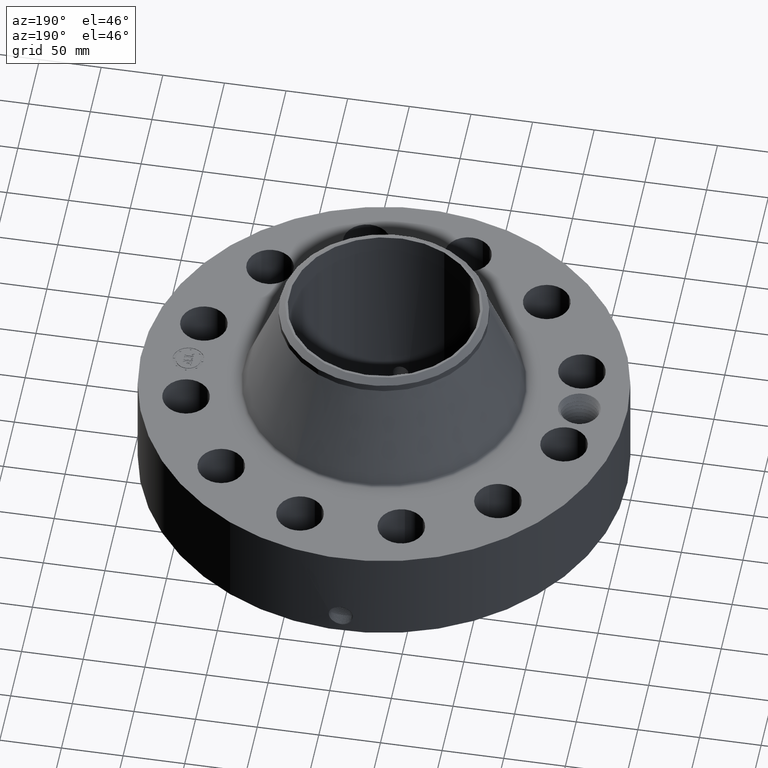
[diagram: clean part render]
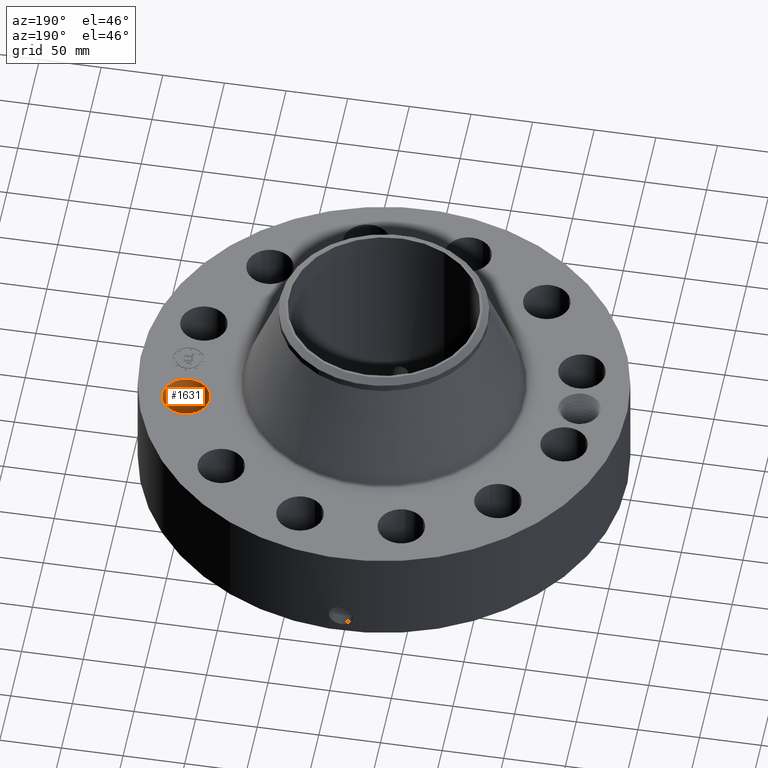
[diagram: same view with one face highlighted and labeled with its STEP entity id]
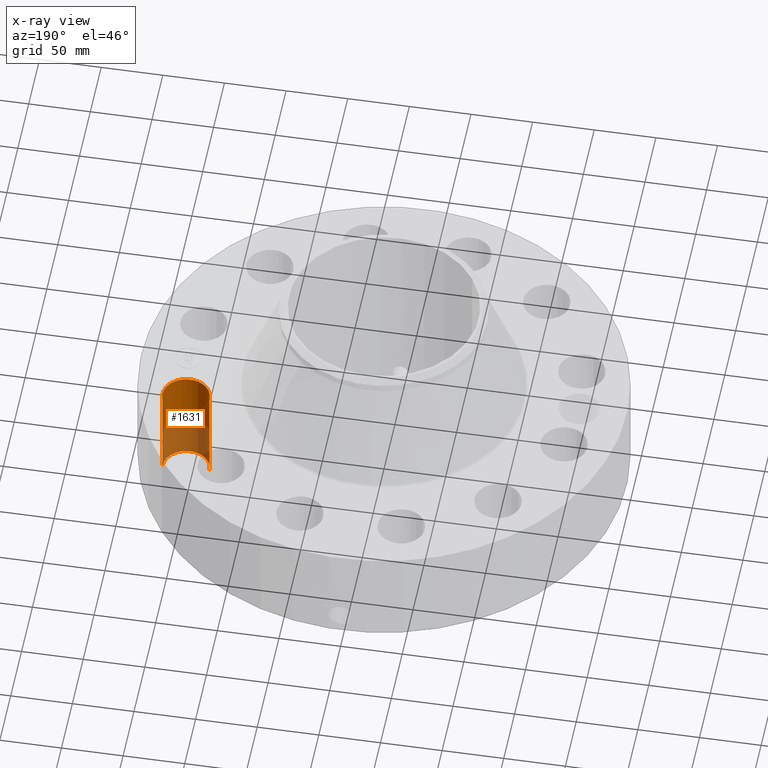
[diagram: x-ray of the same camera — body ghosted, the highlighted face saturated]
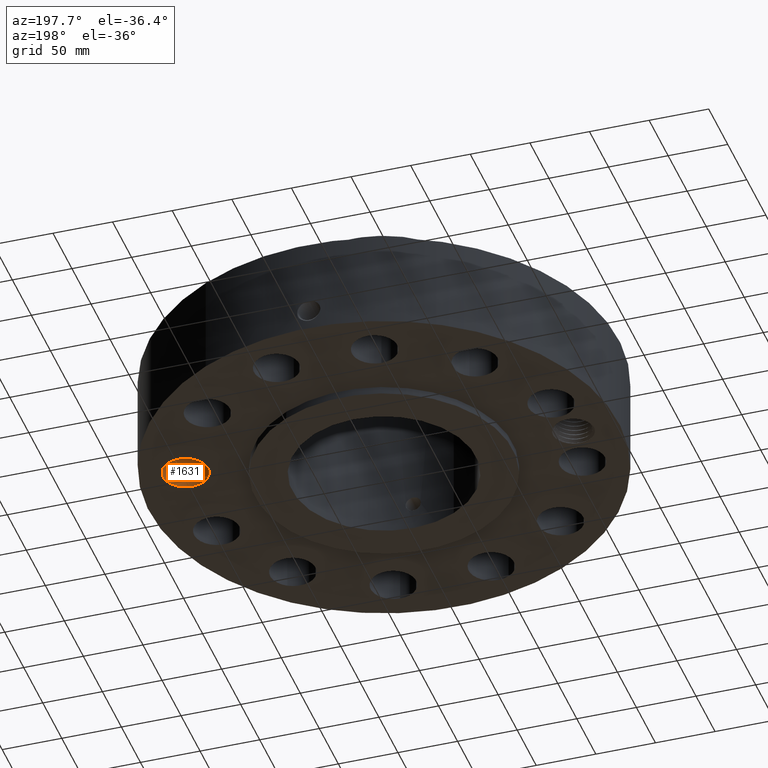
[diagram: same view with one face highlighted and labeled with its STEP entity id]
A machine part, auxiliary view. The second image highlights one B-rep face of the part: STEP entity #1631.
The next image is the same camera in x-ray: the body ghosted, the highlighted face saturated — about 46% of this face is hidden behind the body in this view.
A second angle (auxiliary view) of the same face is appended — the face is thin or edge-on in the first view.
In plain terms, the highlighted cylindrical surface (edge-blend (fillet) strip) has radius 19.05 mm, axis along (0, 0, -1).
Its self-contained STEP definition (entity closure, byte-faithful):
#460=AXIS2_PLACEMENT_3D('Circle Axis2P3D',#458,#459,$) ;
#840=AXIS2_PLACEMENT_3D('Circle Axis2P3D',#838,#839,$) ;
#1606=AXIS2_PLACEMENT_3D('Cylinder Axis2P3D',#1603,#1604,#1605) ;
#453=CARTESIAN_POINT('Vertex',(5.28724524296,1.59992159293,0.250000000001)) ;
#455=CARTESIAN_POINT('Vertex',(6.7868275857,1.63531647087,0.250000000001)) ;
#458=CARTESIAN_POINT('Axis2P3D Location',(6.03703641433,1.6176190319,0.250000000001)) ;
#838=CARTESIAN_POINT('Axis2P3D Location',(6.03703641433,1.6176190319,3.50000000001)) ;
#842=CARTESIAN_POINT('Vertex',(6.7868275857,1.63531647087,3.50000000001)) ;
#844=CARTESIAN_POINT('Vertex',(5.28724524296,1.59992159293,3.50000000001)) ;
#1603=CARTESIAN_POINT('Axis2P3D Location',(6.03703641433,1.6176190319,3.49606299214)) ;
#1608=CARTESIAN_POINT('Line Origine',(5.28724524296,1.59992159293,1.87500000001)) ;
#1613=CARTESIAN_POINT('Line Origine',(6.7868275857,1.63531647087,1.87500000001)) ;
#459=DIRECTION('Axis2P3D Direction',(0.,0.,-0.0393700787402)) ;
#839=DIRECTION('Axis2P3D Direction',(0.,0.,-0.0393700787402)) ;
#1604=DIRECTION('Axis2P3D Direction',(0.,0.,-0.0393700787402)) ;
#1605=DIRECTION('Axis2P3D XDirection',(0.039359116607,0.000928999420902,0.)) ;
#1609=DIRECTION('Vector Direction',(0.,0.,-0.0393700787402)) ;
#1614=DIRECTION('Vector Direction',(0.,0.,-0.0393700787402)) ;
#1610=VECTOR('Line Direction',#1609,0.0393700787402) ;
#1615=VECTOR('Line Direction',#1614,0.0393700787402) ;
#1626=ORIENTED_EDGE('',*,*,#1617,.F.) ;
#1627=ORIENTED_EDGE('',*,*,#462,.T.) ;
#1628=ORIENTED_EDGE('',*,*,#1612,.T.) ;
#1629=ORIENTED_EDGE('',*,*,#846,.F.) ;
#1631=ADVANCED_FACE('PartBody',(#1630),#1607,.F.) ;
#461=CIRCLE('generated circle',#460,0.750000000003) ;
#841=CIRCLE('generated circle',#840,0.750000000003) ;
#1607=CYLINDRICAL_SURFACE('generated cylinder',#1606,0.750000000003) ;
#462=EDGE_CURVE('',#456,#454,#461,.T.) ;
#846=EDGE_CURVE('',#843,#845,#841,.T.) ;
#1612=EDGE_CURVE('',#454,#845,#1611,.F.) ;
#1617=EDGE_CURVE('',#456,#843,#1616,.F.) ;
#1625=EDGE_LOOP('',(#1626,#1627,#1628,#1629)) ;
#1630=FACE_OUTER_BOUND('',#1625,.T.) ;
#1611=LINE('Line',#1608,#1610) ;
#1616=LINE('Line',#1613,#1615) ;
#454=VERTEX_POINT('',#453) ;
#456=VERTEX_POINT('',#455) ;
#843=VERTEX_POINT('',#842) ;
#845=VERTEX_POINT('',#844) ;